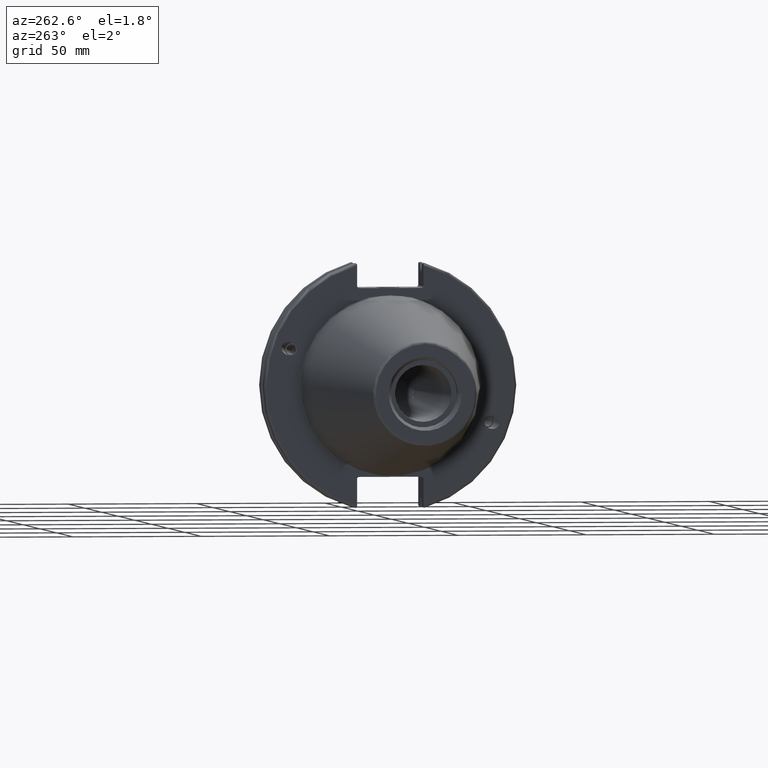
[diagram: clean part render]
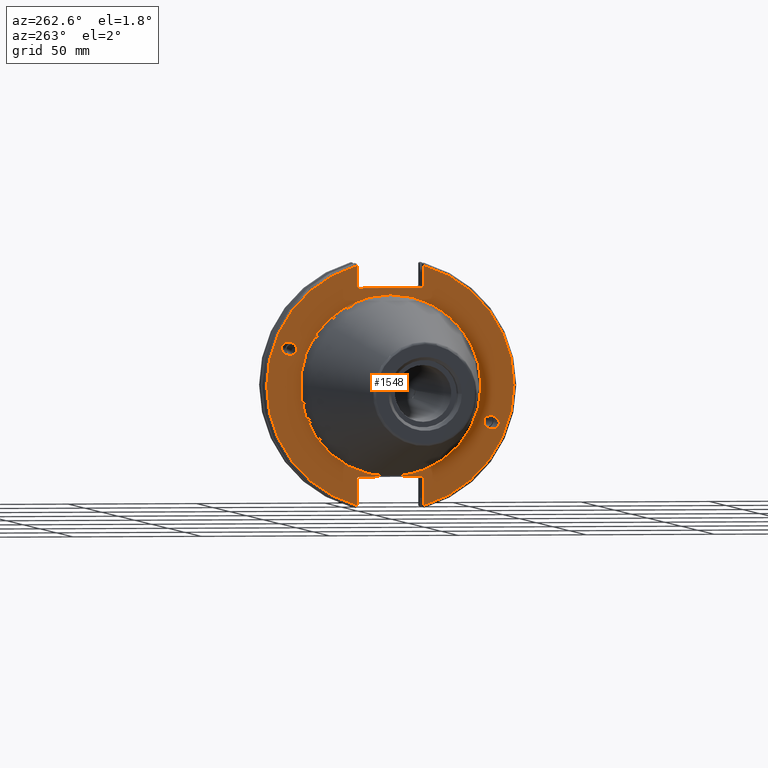
[diagram: same view with one face highlighted and labeled with its STEP entity id]
A machine part, auxiliary view. The second image highlights one B-rep face of the part: STEP entity #1548.
In plain terms, the highlighted planar face has unit normal (-1, 0, 0).
Its self-contained STEP definition (entity closure, byte-faithful):
#31=ELLIPSE('',#1672,3.05193647190364,2.5);
#32=ELLIPSE('',#1706,3.05193647190364,2.5);
#45=PLANE('',#1712);
#88=FACE_BOUND('',#279,.T.);
#89=FACE_BOUND('',#280,.T.);
#90=FACE_BOUND('',#281,.T.);
#173=FACE_OUTER_BOUND('',#278,.T.);
#278=EDGE_LOOP('',(#1255,#1256,#1257,#1258,#1259,#1260,#1261,#1262,#1263,
#1264,#1265,#1266));
#279=EDGE_LOOP('',(#1267));
#280=EDGE_LOOP('',(#1268));
#281=EDGE_LOOP('',(#1269));
#379=CIRCLE('',#1710,35.125);
#381=CIRCLE('',#1713,48.2125);
#382=CIRCLE('',#1714,48.2125);
#451=LINE('',#2996,#543);
#452=LINE('',#2998,#544);
#453=LINE('',#3000,#545);
#454=LINE('',#3002,#546);
#455=LINE('',#3004,#547);
#456=LINE('',#3008,#548);
#457=LINE('',#3010,#549);
#458=LINE('',#3012,#550);
#459=LINE('',#3014,#551);
#460=LINE('',#3015,#552);
#543=VECTOR('',#2025,10.);
#544=VECTOR('',#2026,10.);
#545=VECTOR('',#2027,10.);
#546=VECTOR('',#2028,10.);
#547=VECTOR('',#2029,10.);
#548=VECTOR('',#2032,10.);
#549=VECTOR('',#2033,10.);
#550=VECTOR('',#2034,10.);
#551=VECTOR('',#2035,10.);
#552=VECTOR('',#2036,10.);
#699=VERTEX_POINT('',#2721);
#737=VERTEX_POINT('',#2980);
#740=VERTEX_POINT('',#2987);
#741=VERTEX_POINT('',#2992);
#742=VERTEX_POINT('',#2993);
#743=VERTEX_POINT('',#2995);
#744=VERTEX_POINT('',#2997);
#745=VERTEX_POINT('',#2999);
#746=VERTEX_POINT('',#3001);
#747=VERTEX_POINT('',#3003);
#748=VERTEX_POINT('',#3005);
#749=VERTEX_POINT('',#3007);
#750=VERTEX_POINT('',#3009);
#751=VERTEX_POINT('',#3011);
#752=VERTEX_POINT('',#3013);
#875=EDGE_CURVE('',#699,#699,#31,.T.);
#926=EDGE_CURVE('',#737,#737,#32,.T.);
#929=EDGE_CURVE('',#740,#740,#379,.T.);
#931=EDGE_CURVE('',#741,#742,#381,.T.);
#932=EDGE_CURVE('',#741,#743,#451,.T.);
#933=EDGE_CURVE('',#744,#743,#452,.T.);
#934=EDGE_CURVE('',#744,#745,#453,.T.);
#935=EDGE_CURVE('',#746,#745,#454,.T.);
#936=EDGE_CURVE('',#746,#747,#455,.T.);
#937=EDGE_CURVE('',#748,#747,#382,.T.);
#938=EDGE_CURVE('',#748,#749,#456,.T.);
#939=EDGE_CURVE('',#750,#749,#457,.T.);
#940=EDGE_CURVE('',#750,#751,#458,.T.);
#941=EDGE_CURVE('',#752,#751,#459,.T.);
#942=EDGE_CURVE('',#752,#742,#460,.T.);
#1255=ORIENTED_EDGE('',*,*,#931,.F.);
#1256=ORIENTED_EDGE('',*,*,#932,.T.);
#1257=ORIENTED_EDGE('',*,*,#933,.F.);
#1258=ORIENTED_EDGE('',*,*,#934,.T.);
#1259=ORIENTED_EDGE('',*,*,#935,.F.);
#1260=ORIENTED_EDGE('',*,*,#936,.T.);
#1261=ORIENTED_EDGE('',*,*,#937,.F.);
#1262=ORIENTED_EDGE('',*,*,#938,.T.);
#1263=ORIENTED_EDGE('',*,*,#939,.F.);
#1264=ORIENTED_EDGE('',*,*,#940,.T.);
#1265=ORIENTED_EDGE('',*,*,#941,.F.);
#1266=ORIENTED_EDGE('',*,*,#942,.T.);
#1267=ORIENTED_EDGE('',*,*,#875,.T.);
#1268=ORIENTED_EDGE('',*,*,#926,.T.);
#1269=ORIENTED_EDGE('',*,*,#929,.F.);
#1548=ADVANCED_FACE('',(#173,#88,#89,#90),#45,.T.);
#1672=AXIS2_PLACEMENT_3D('',#2723,#1925,#1926);
#1706=AXIS2_PLACEMENT_3D('',#2982,#2009,#2010);
#1710=AXIS2_PLACEMENT_3D('',#2989,#2017,#2018);
#1712=AXIS2_PLACEMENT_3D('',#2991,#2021,#2022);
#1713=AXIS2_PLACEMENT_3D('',#2994,#2023,#2024);
#1714=AXIS2_PLACEMENT_3D('',#3006,#2030,#2031);
#1925=DIRECTION('center_axis',(1.,0.,0.));
#1926=DIRECTION('ref_axis',(0.,-0.939692620785908,-0.342020143325668));
#2009=DIRECTION('center_axis',(1.,0.,0.));
#2010=DIRECTION('ref_axis',(0.,0.939692620785908,0.342020143325669));
#2017=DIRECTION('center_axis',(-1.,0.,0.));
#2018=DIRECTION('ref_axis',(0.,-1.,1.83697019872103E-16));
#2021=DIRECTION('center_axis',(-1.,0.,0.));
#2022=DIRECTION('ref_axis',(0.,0.,1.));
#2023=DIRECTION('center_axis',(1.,0.,0.));
#2024=DIRECTION('ref_axis',(0.,-1.,1.60812264967664E-16));
#2025=DIRECTION('',(0.,0.,-1.));
#2026=DIRECTION('',(0.,-0.707106781186549,0.707106781186546));
#2027=DIRECTION('',(0.,1.,0.));
#2028=DIRECTION('',(0.,-0.707106781186549,-0.707106781186546));
#2029=DIRECTION('',(0.,0.,1.));
#2030=DIRECTION('center_axis',(1.,0.,0.));
#2031=DIRECTION('ref_axis',(0.,1.,-6.12323399573677E-17));
#2032=DIRECTION('',(0.,0.,1.));
#2033=DIRECTION('',(0.,0.707106781186549,-0.707106781186546));
#2034=DIRECTION('',(0.,-1.,0.));
#2035=DIRECTION('',(0.,0.707106781186549,0.707106781186546));
#2036=DIRECTION('',(0.,0.,-1.));
#2721=CARTESIAN_POINT('',(3.175,-36.5992078912529,-13.3210222701368));
#2723=CARTESIAN_POINT('Origin',(3.175,-39.4670900730082,-14.3648460196781));
#2980=CARTESIAN_POINT('',(3.175,36.5992078912529,13.3210222701368));
#2982=CARTESIAN_POINT('Origin',(3.175,39.4670900730082,14.3648460196781));
#2987=CARTESIAN_POINT('',(3.175,-4.30157188200508E-15,35.125));
#2989=CARTESIAN_POINT('Origin',(3.175,0.,0.));
#2991=CARTESIAN_POINT('Origin',(3.175,49.2125,0.));
#2992=CARTESIAN_POINT('',(3.175,-12.95,46.4407434937254));
#2993=CARTESIAN_POINT('',(3.175,-12.95,-46.4407434937254));
#2994=CARTESIAN_POINT('Origin',(3.175,0.,0.));
#2995=CARTESIAN_POINT('',(3.175,-12.95,38.219));
#2996=CARTESIAN_POINT('',(3.175,-12.95,18.8595));
#2997=CARTESIAN_POINT('',(3.175,-12.45,37.719));
#2998=CARTESIAN_POINT('',(3.175,12.2703750000001,12.998625));
#2999=CARTESIAN_POINT('',(3.175,12.45,37.719));
#3000=CARTESIAN_POINT('',(3.175,24.60625,37.719));
#3001=CARTESIAN_POINT('',(3.175,12.95,38.219));
#3002=CARTESIAN_POINT('',(3.175,12.335875,37.604875));
#3003=CARTESIAN_POINT('',(3.175,12.95,46.4407434937254));
#3004=CARTESIAN_POINT('',(3.175,12.95,18.8595));
#3005=CARTESIAN_POINT('',(3.175,12.95,-46.4407434937254));
#3006=CARTESIAN_POINT('Origin',(3.175,0.,0.));
#3007=CARTESIAN_POINT('',(3.175,12.95,-35.806));
#3008=CARTESIAN_POINT('',(3.175,12.95,-17.653));
#3009=CARTESIAN_POINT('',(3.175,12.45,-35.306));
#3010=CARTESIAN_POINT('',(3.175,12.939125,-35.795125));
#3011=CARTESIAN_POINT('',(3.175,-12.45,-35.306));
#3012=CARTESIAN_POINT('',(3.175,24.60625,-35.306));
#3013=CARTESIAN_POINT('',(3.175,-12.95,-35.806));
#3014=CARTESIAN_POINT('',(3.175,11.6671250000001,-11.188875));
#3015=CARTESIAN_POINT('',(3.175,-12.95,-17.653));